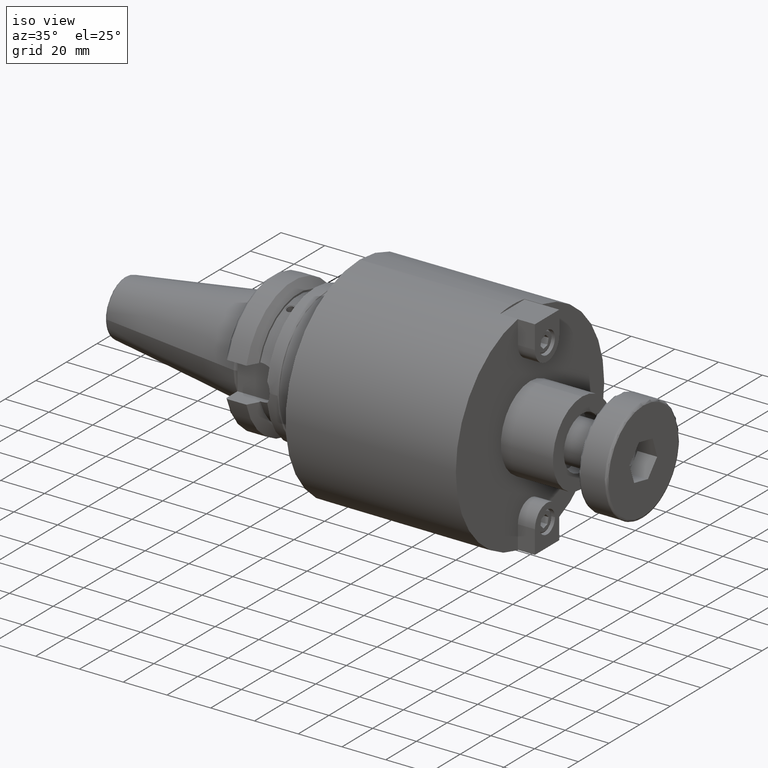
[diagram: clean part render]
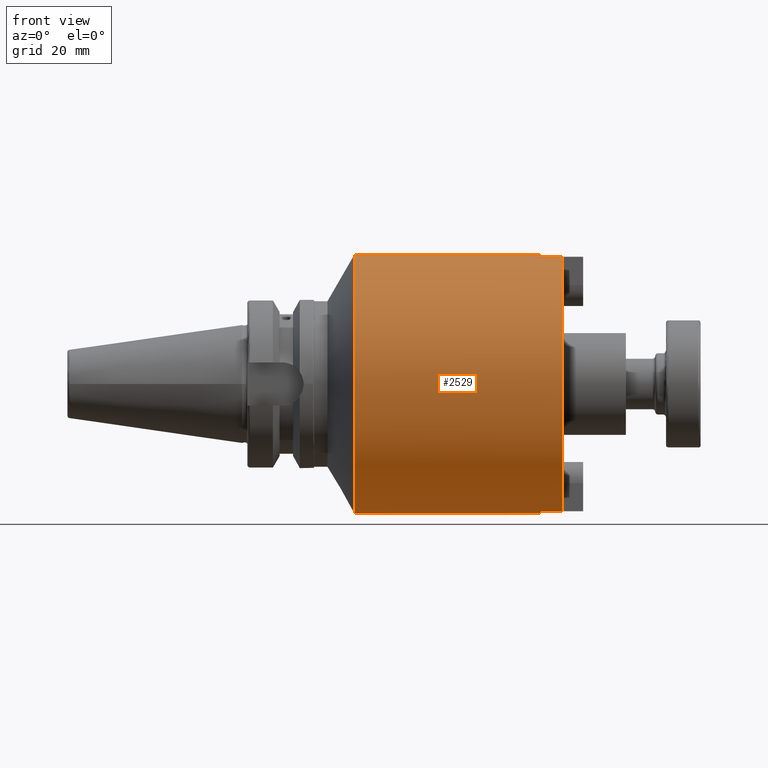
[diagram: tour spotlight — one face highlighted and labeled with its STEP entity id]
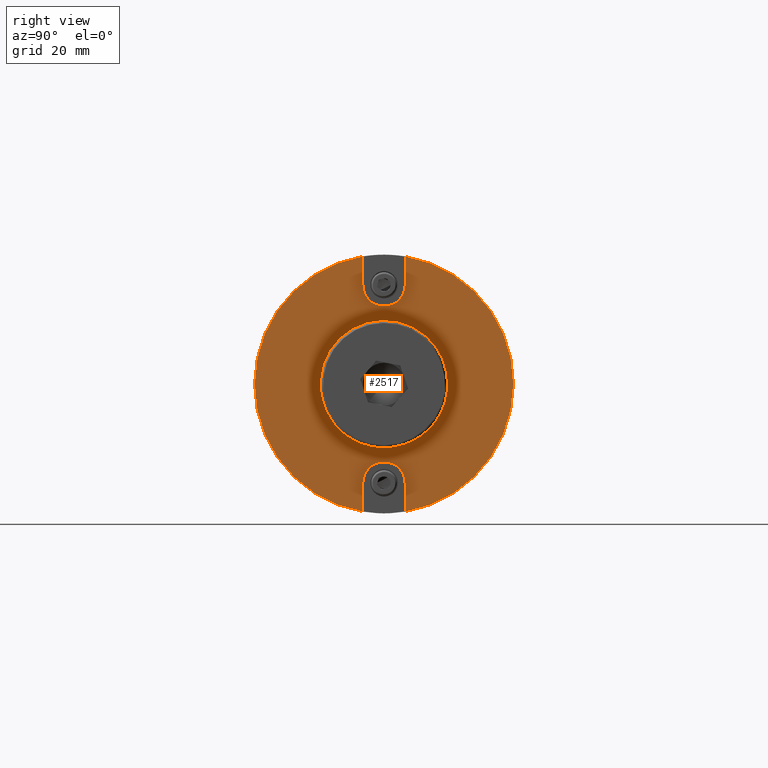
[diagram: tour spotlight — one face highlighted and labeled with its STEP entity id]
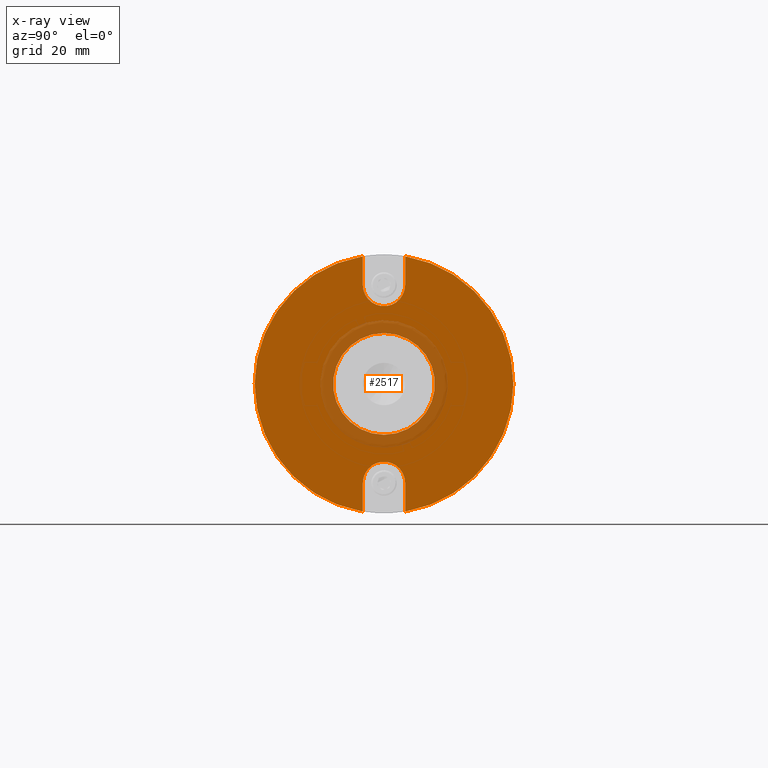
[diagram: x-ray of the same camera — body ghosted, this tour face saturated]
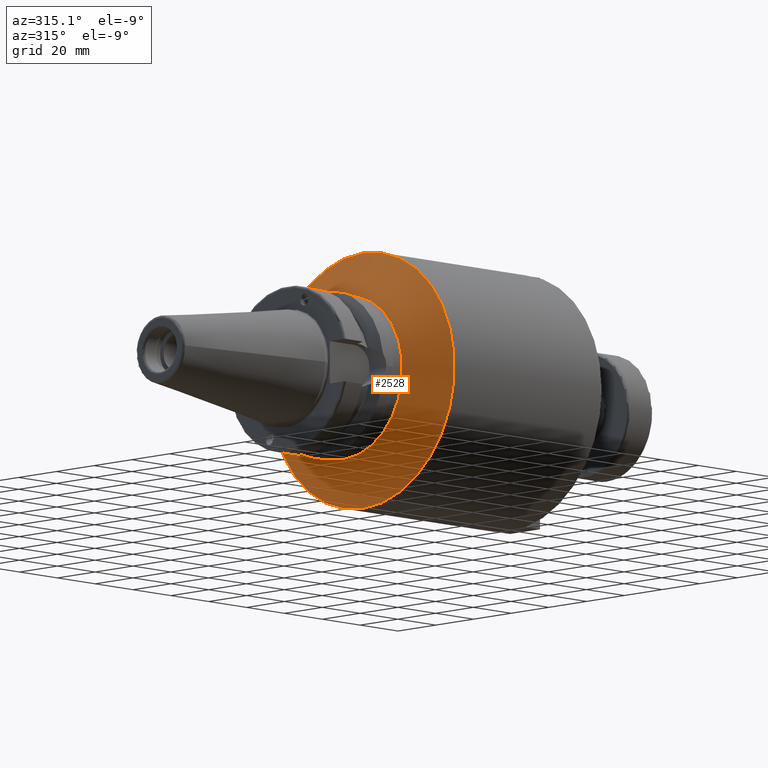
[diagram: tour spotlight — one face highlighted and labeled with its STEP entity id]
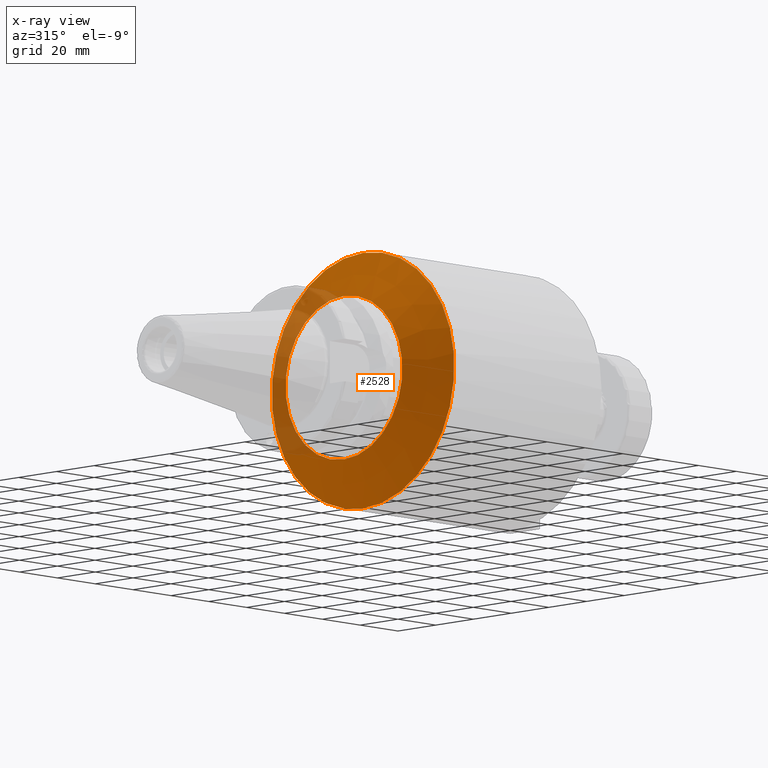
[diagram: x-ray of the same camera — body ghosted, this tour face saturated]
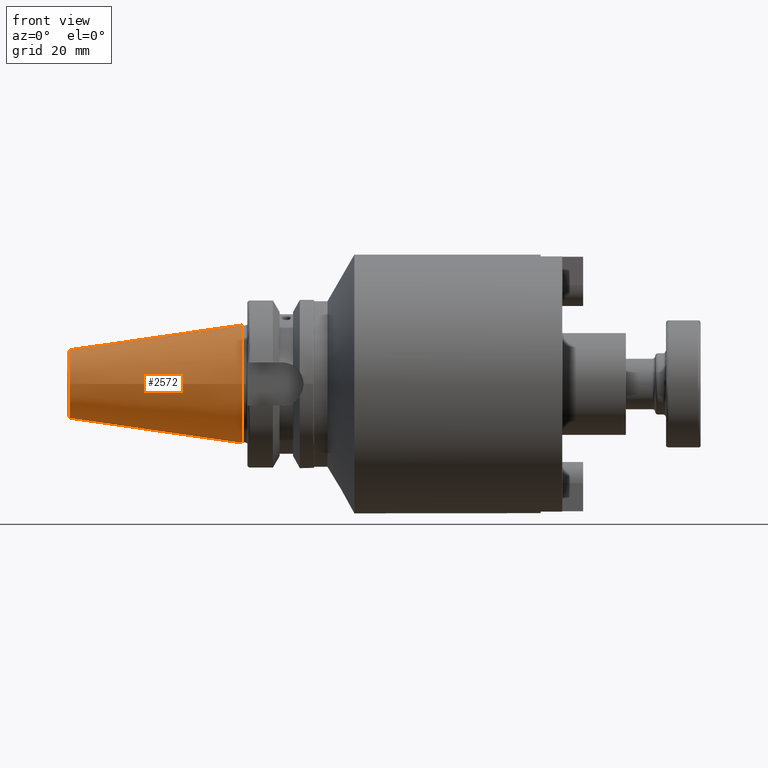
[diagram: tour spotlight — one face highlighted and labeled with its STEP entity id]
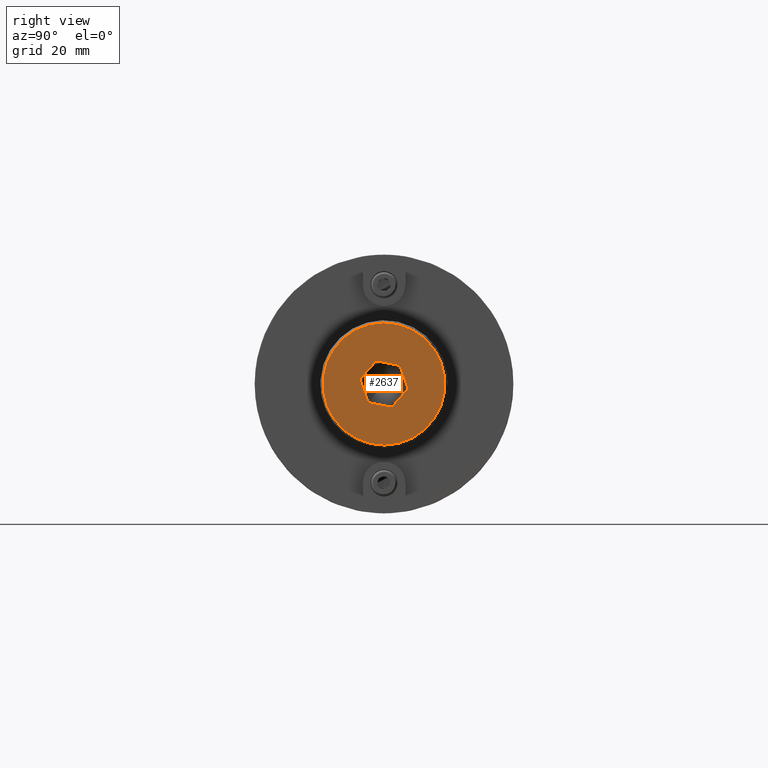
[diagram: tour spotlight — one face highlighted and labeled with its STEP entity id]
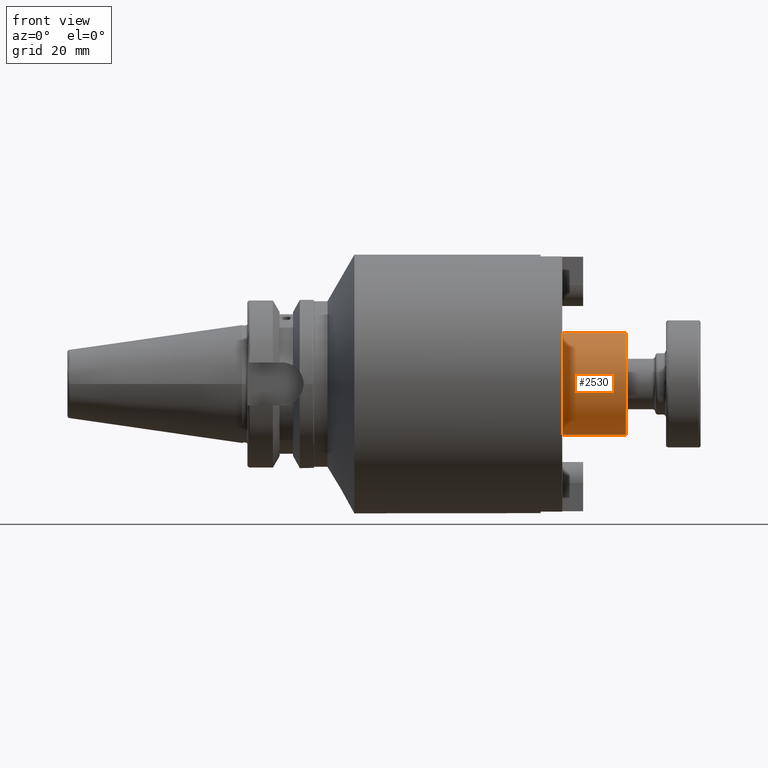
[diagram: tour spotlight — one face highlighted and labeled with its STEP entity id]
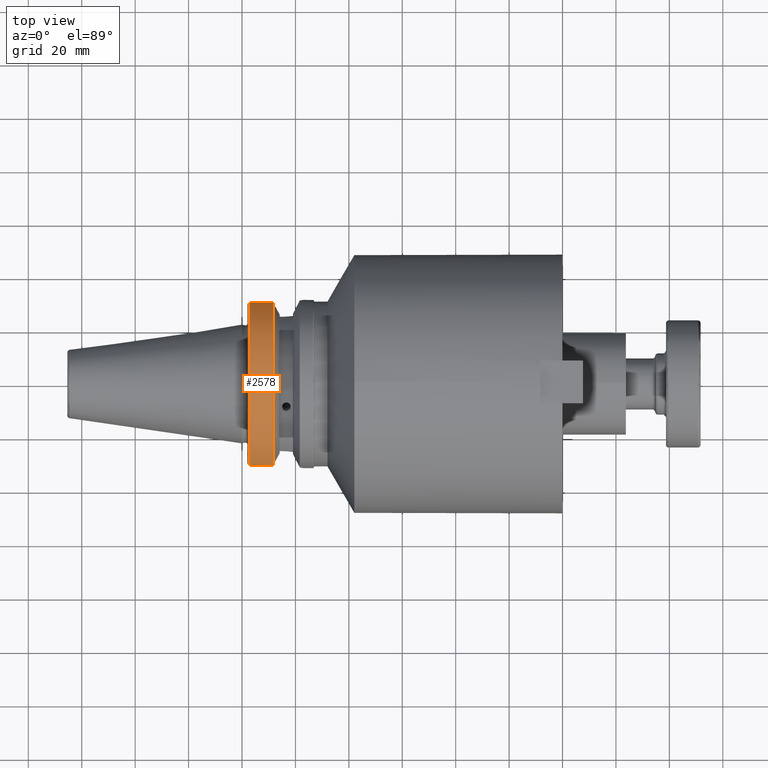
[diagram: tour spotlight — one face highlighted and labeled with its STEP entity id]
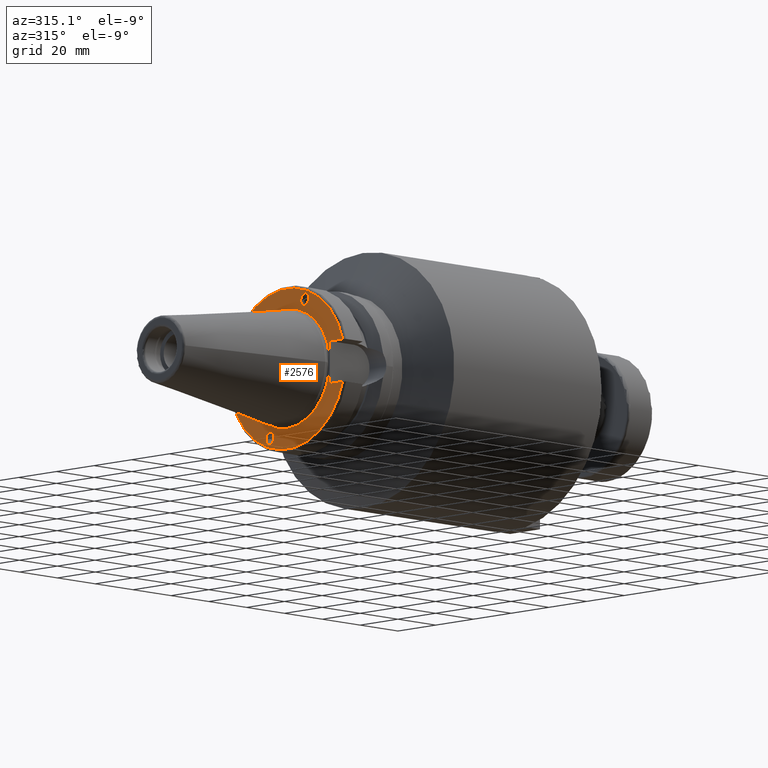
[diagram: tour spotlight — one face highlighted and labeled with its STEP entity id]
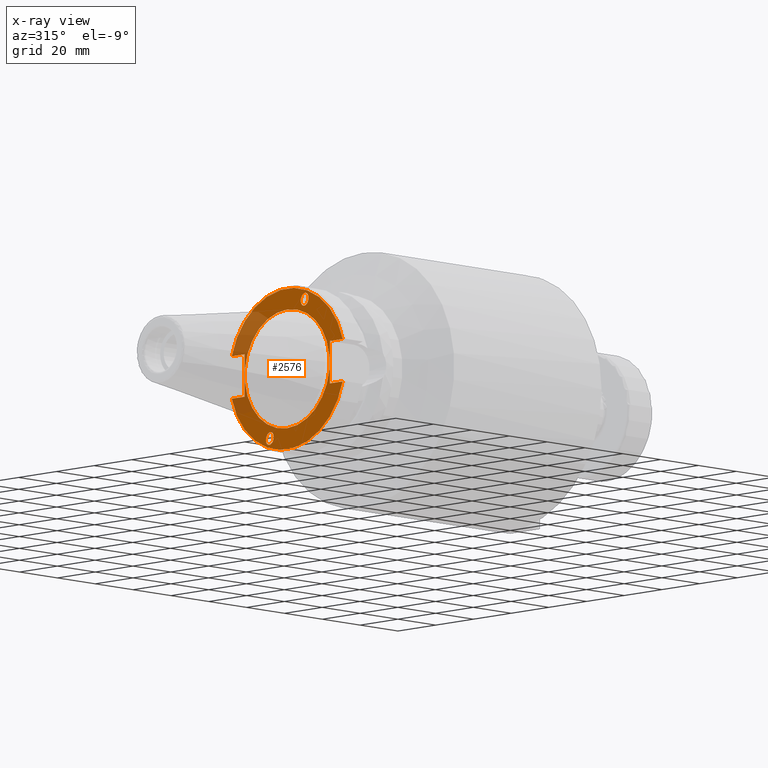
[diagram: x-ray of the same camera — body ghosted, this tour face saturated]
A machine part: a face-by-face anatomy tour. The part has 151 B-rep faces; the first image is the clean iso view, then the 8 largest visible faces are spotlighted one at a time (largest first), each with its STEP entity span.

Face 1 — front view, entity #2529. In plain terms, the highlighted cylindrical surface (bore or boss wall) has radius 48.425 mm, axis along (1, 0, 0).
Definition (entity closure, byte-faithful):
#578=CYLINDRICAL_SURFACE('',#2834,48.425);
#616=CIRCLE('',#2804,48.425);
#617=CIRCLE('',#2805,48.425);
#618=CIRCLE('',#2807,48.425);
#620=CIRCLE('',#2809,48.425);
#625=CIRCLE('',#2820,48.425);
#633=CIRCLE('',#2833,48.425);
#786=FACE_OUTER_BOUND('',#918,.T.);
#918=EDGE_LOOP('',(#1919,#1920,#1921,#1922,#1923,#1924,#1925,#1926,#1927,
#1928,#1929,#1930));
#1047=LINE('',#3948,#1184);
#1053=LINE('',#3966,#1190);
#1061=LINE('',#4002,#1198);
#1064=LINE('',#4008,#1201);
#1072=LINE('',#4119,#1209);
#1184=VECTOR('',#3136,10.);
#1190=VECTOR('',#3152,10.);
#1198=VECTOR('',#3192,10.);
#1201=VECTOR('',#3197,10.);
#1209=VECTOR('',#3241,48.425);
#1321=VERTEX_POINT('',#3946);
#1322=VERTEX_POINT('',#3947);
#1328=VERTEX_POINT('',#3964);
#1329=VERTEX_POINT('',#3965);
#1332=VERTEX_POINT('',#3976);
#1333=VERTEX_POINT('',#3980);
#1336=VERTEX_POINT('',#3986);
#1341=VERTEX_POINT('',#4001);
#1343=VERTEX_POINT('',#4007);
#1356=VERTEX_POINT('',#4115);
#1525=EDGE_CURVE('',#1321,#1322,#1047,.T.);
#1533=EDGE_CURVE('',#1328,#1329,#1053,.T.);
#1539=EDGE_CURVE('',#1329,#1332,#616,.T.);
#1540=EDGE_CURVE('',#1332,#1321,#617,.T.);
#1541=EDGE_CURVE('',#1328,#1333,#618,.T.);
#1545=EDGE_CURVE('',#1336,#1322,#620,.T.);
#1551=EDGE_CURVE('',#1341,#1333,#1061,.T.);
#1554=EDGE_CURVE('',#1336,#1343,#1064,.T.);
#1558=EDGE_CURVE('',#1343,#1341,#625,.T.);
#1574=EDGE_CURVE('',#1356,#1356,#633,.T.);
#1576=EDGE_CURVE('',#1332,#1356,#1072,.T.);
#1919=ORIENTED_EDGE('',*,*,#1525,.T.);
#1920=ORIENTED_EDGE('',*,*,#1545,.F.);
#1921=ORIENTED_EDGE('',*,*,#1554,.T.);
#1922=ORIENTED_EDGE('',*,*,#1558,.T.);
#1923=ORIENTED_EDGE('',*,*,#1551,.T.);
#1924=ORIENTED_EDGE('',*,*,#1541,.F.);
#1925=ORIENTED_EDGE('',*,*,#1533,.T.);
#1926=ORIENTED_EDGE('',*,*,#1539,.T.);
#1927=ORIENTED_EDGE('',*,*,#1576,.T.);
#1928=ORIENTED_EDGE('',*,*,#1574,.T.);
#1929=ORIENTED_EDGE('',*,*,#1576,.F.);
#1930=ORIENTED_EDGE('',*,*,#1540,.T.);
#2529=ADVANCED_FACE('',(#786),#578,.T.);
#2804=AXIS2_PLACEMENT_3D('',#3977,#3164,#3165);
#2805=AXIS2_PLACEMENT_3D('',#3978,#3166,#3167);
#2807=AXIS2_PLACEMENT_3D('',#3981,#3170,#3171);
#2809=AXIS2_PLACEMENT_3D('',#3988,#3176,#3177);
#2820=AXIS2_PLACEMENT_3D('',#4015,#3206,#3207);
#2833=AXIS2_PLACEMENT_3D('',#4116,#3236,#3237);
#2834=AXIS2_PLACEMENT_3D('',#4118,#3239,#3240);
#3136=DIRECTION('',(1.,0.,0.));
#3152=DIRECTION('',(-1.,0.,0.));
#3164=DIRECTION('center_axis',(-1.,0.,0.));
#3165=DIRECTION('ref_axis',(0.,0.,-1.));
#3166=DIRECTION('center_axis',(-1.,0.,0.));
#3167=DIRECTION('ref_axis',(0.,0.,-1.));
#3170=DIRECTION('center_axis',(1.,0.,0.));
#3171=DIRECTION('ref_axis',(0.,0.,-1.));
#3176=DIRECTION('center_axis',(1.,0.,0.));
#3177=DIRECTION('ref_axis',(0.,0.,-1.));
#3192=DIRECTION('',(1.,0.,0.));
#3197=DIRECTION('',(-1.,0.,0.));
#3206=DIRECTION('center_axis',(-1.,0.,0.));
#3207=DIRECTION('ref_axis',(0.,0.,-1.));
#3236=DIRECTION('center_axis',(1.,0.,0.));
#3237=DIRECTION('ref_axis',(0.,0.,-1.));
#3239=DIRECTION('center_axis',(1.,0.,0.));
#3240=DIRECTION('ref_axis',(0.,0.,-1.));
#3241=DIRECTION('',(-1.,0.,0.));
#3946=CARTESIAN_POINT('',(111.818,7.935,47.770455304508));
#3947=CARTESIAN_POINT('',(119.888,7.935,47.770455304508));
#3948=CARTESIAN_POINT('',(80.9741642203146,7.935,47.770455304508));
#3964=CARTESIAN_POINT('',(119.888,-7.93499999999999,47.770455304508));
#3965=CARTESIAN_POINT('',(111.818,-7.93499999999999,47.770455304508));
#3966=CARTESIAN_POINT('',(80.9741642203146,-7.93499999999999,47.770455304508));
#3976=CARTESIAN_POINT('',(111.818,-5.93035212487106E-15,48.425));
#3977=CARTESIAN_POINT('Origin',(111.818,0.,0.));
#3978=CARTESIAN_POINT('Origin',(111.818,0.,0.));
#3980=CARTESIAN_POINT('',(119.888,-7.935,-47.770455304508));
#3981=CARTESIAN_POINT('Origin',(119.888,0.,0.));
#3986=CARTESIAN_POINT('',(119.888,7.935,-47.770455304508));
#3988=CARTESIAN_POINT('Origin',(119.888,0.,0.));
#4001=CARTESIAN_POINT('',(111.818,-7.935,-47.770455304508));
#4002=CARTESIAN_POINT('',(80.9741642203146,-7.935,-47.770455304508));
#4007=CARTESIAN_POINT('',(111.818,7.935,-47.770455304508));
#4008=CARTESIAN_POINT('',(80.9741642203146,7.935,-47.770455304508));
#4015=CARTESIAN_POINT('Origin',(111.818,0.,0.));
#4115=CARTESIAN_POINT('',(42.0603284406292,-5.93035212487106E-15,48.425));
#4116=CARTESIAN_POINT('Origin',(42.0603284406292,0.,0.));
#4118=CARTESIAN_POINT('Origin',(80.9741642203146,0.,0.));
#4119=CARTESIAN_POINT('',(80.9741642203146,-5.93035212487106E-15,48.425));

Face 2 — right view, entity #2517. An x-ray twin of the same camera follows (body ghosted, this face saturated) — the face is partly hidden behind the body. In plain terms, the highlighted planar face has unit normal (1, 0, 0).
Definition (entity closure, byte-faithful):
#547=FACE_BOUND('',#903,.T.);
#614=CIRCLE('',#2801,7.935);
#618=CIRCLE('',#2807,48.425);
#619=CIRCLE('',#2808,7.935);
#620=CIRCLE('',#2809,48.425);
#621=CIRCLE('',#2810,19.05);
#774=FACE_OUTER_BOUND('',#902,.T.);
#902=EDGE_LOOP('',(#1860,#1861,#1862,#1863,#1864,#1865,#1866,#1867));
#903=EDGE_LOOP('',(#1868));
#1050=LINE('',#3953,#1187);
#1054=LINE('',#3968,#1191);
#1057=LINE('',#3983,#1194);
#1058=LINE('',#3987,#1195);
#1187=VECTOR('',#3139,10.);
#1191=VECTOR('',#3153,10.);
#1194=VECTOR('',#3172,10.);
#1195=VECTOR('',#3175,10.);
#1322=VERTEX_POINT('',#3947);
#1324=VERTEX_POINT('',#3951);
#1328=VERTEX_POINT('',#3964);
#1330=VERTEX_POINT('',#3967);
#1333=VERTEX_POINT('',#3980);
#1334=VERTEX_POINT('',#3982);
#1335=VERTEX_POINT('',#3984);
#1336=VERTEX_POINT('',#3986);
#1337=VERTEX_POINT('',#3989);
#1528=EDGE_CURVE('',#1322,#1324,#1050,.T.);
#1534=EDGE_CURVE('',#1330,#1328,#1054,.T.);
#1537=EDGE_CURVE('',#1324,#1330,#614,.T.);
#1541=EDGE_CURVE('',#1328,#1333,#618,.T.);
#1542=EDGE_CURVE('',#1333,#1334,#1057,.T.);
#1543=EDGE_CURVE('',#1334,#1335,#619,.T.);
#1544=EDGE_CURVE('',#1335,#1336,#1058,.T.);
#1545=EDGE_CURVE('',#1336,#1322,#620,.T.);
#1546=EDGE_CURVE('',#1337,#1337,#621,.T.);
#1860=ORIENTED_EDGE('',*,*,#1528,.T.);
#1861=ORIENTED_EDGE('',*,*,#1537,.T.);
#1862=ORIENTED_EDGE('',*,*,#1534,.T.);
#1863=ORIENTED_EDGE('',*,*,#1541,.T.);
#1864=ORIENTED_EDGE('',*,*,#1542,.T.);
#1865=ORIENTED_EDGE('',*,*,#1543,.T.);
#1866=ORIENTED_EDGE('',*,*,#1544,.T.);
#1867=ORIENTED_EDGE('',*,*,#1545,.T.);
#1868=ORIENTED_EDGE('',*,*,#1546,.F.);
#2458=PLANE('',#2806);
#2517=ADVANCED_FACE('',(#774,#547),#2458,.T.);
#2801=AXIS2_PLACEMENT_3D('',#3973,#3158,#3159);
#2806=AXIS2_PLACEMENT_3D('',#3979,#3168,#3169);
#2807=AXIS2_PLACEMENT_3D('',#3981,#3170,#3171);
#2808=AXIS2_PLACEMENT_3D('',#3985,#3173,#3174);
#2809=AXIS2_PLACEMENT_3D('',#3988,#3176,#3177);
#2810=AXIS2_PLACEMENT_3D('',#3990,#3178,#3179);
#3139=DIRECTION('',(0.,2.16741865953018E-16,-1.));
#3153=DIRECTION('',(0.,4.61671225782489E-16,1.));
#3158=DIRECTION('center_axis',(-1.,0.,0.));
#3159=DIRECTION('ref_axis',(0.,-1.,1.22464679914735E-16));
#3168=DIRECTION('center_axis',(1.,0.,0.));
#3169=DIRECTION('ref_axis',(0.,0.,-1.));
#3170=DIRECTION('center_axis',(1.,0.,0.));
#3171=DIRECTION('ref_axis',(0.,0.,-1.));
#3172=DIRECTION('',(0.,-3.39206545867753E-16,1.));
#3173=DIRECTION('center_axis',(-1.,0.,0.));
#3174=DIRECTION('ref_axis',(0.,1.,0.));
#3175=DIRECTION('',(0.,-3.39206545867753E-16,-1.));
#3176=DIRECTION('center_axis',(1.,0.,0.));
#3177=DIRECTION('ref_axis',(0.,0.,-1.));
#3178=DIRECTION('center_axis',(1.,0.,0.));
#3179=DIRECTION('ref_axis',(0.,0.,-1.));
#3947=CARTESIAN_POINT('',(119.888,7.935,47.770455304508));
#3951=CARTESIAN_POINT('',(119.888,7.93500000000001,37.06));
#3953=CARTESIAN_POINT('',(119.888,7.93500000000001,17.1875));
#3964=CARTESIAN_POINT('',(119.888,-7.93499999999999,47.770455304508));
#3967=CARTESIAN_POINT('',(119.888,-7.935,37.06));
#3968=CARTESIAN_POINT('',(119.888,-7.93500000000001,9.00499999999999));
#3973=CARTESIAN_POINT('Origin',(119.888,4.53854103764009E-15,37.06));
#3979=CARTESIAN_POINT('Origin',(119.888,0.,-19.05));
#3980=CARTESIAN_POINT('',(119.888,-7.935,-47.770455304508));
#3981=CARTESIAN_POINT('Origin',(119.888,0.,0.));
#3982=CARTESIAN_POINT('',(119.888,-7.935,-37.06));
#3983=CARTESIAN_POINT('',(119.888,-7.935,-36.2375));
#3984=CARTESIAN_POINT('',(119.888,7.935,-37.06));
#3985=CARTESIAN_POINT('Origin',(119.888,0.,-37.06));
#3986=CARTESIAN_POINT('',(119.888,7.935,-47.770455304508));
#3987=CARTESIAN_POINT('',(119.888,7.935,-28.055));
#3988=CARTESIAN_POINT('Origin',(119.888,0.,0.));
#3989=CARTESIAN_POINT('',(119.888,-2.33295215237571E-15,19.05));
#3990=CARTESIAN_POINT('Origin',(119.888,0.,0.));

Face 3 — auxiliary view, entity #2528. An x-ray twin of the same camera follows (body ghosted, this face saturated) — the face is partly hidden behind the body. In plain terms, the highlighted conical surface has half-angle 60 deg.
Definition (entity closure, byte-faithful):
#631=CIRCLE('',#2830,31.);
#633=CIRCLE('',#2833,48.425);
#754=CONICAL_SURFACE('',#2832,39.7125,1.0471975511966);
#785=FACE_OUTER_BOUND('',#917,.T.);
#917=EDGE_LOOP('',(#1915,#1916,#1917,#1918));
#1071=LINE('',#4117,#1208);
#1208=VECTOR('',#3238,39.7125);
#1354=VERTEX_POINT('',#4109);
#1356=VERTEX_POINT('',#4115);
#1571=EDGE_CURVE('',#1354,#1354,#631,.T.);
#1574=EDGE_CURVE('',#1356,#1356,#633,.T.);
#1575=EDGE_CURVE('',#1356,#1354,#1071,.T.);
#1915=ORIENTED_EDGE('',*,*,#1574,.F.);
#1916=ORIENTED_EDGE('',*,*,#1575,.T.);
#1917=ORIENTED_EDGE('',*,*,#1571,.T.);
#1918=ORIENTED_EDGE('',*,*,#1575,.F.);
#2528=ADVANCED_FACE('',(#785),#754,.T.);
#2830=AXIS2_PLACEMENT_3D('',#4110,#3229,#3230);
#2832=AXIS2_PLACEMENT_3D('',#4114,#3234,#3235);
#2833=AXIS2_PLACEMENT_3D('',#4116,#3236,#3237);
#3229=DIRECTION('center_axis',(1.,0.,0.));
#3230=DIRECTION('ref_axis',(0.,0.,-1.));
#3234=DIRECTION('center_axis',(1.,0.,0.));
#3235=DIRECTION('ref_axis',(0.,0.,-1.));
#3236=DIRECTION('center_axis',(1.,0.,0.));
#3237=DIRECTION('ref_axis',(0.,0.,-1.));
#3238=DIRECTION('',(-0.5,1.06057523872491E-16,-0.866025403784439));
#4109=CARTESIAN_POINT('',(32.,-3.7964050773568E-15,31.));
#4110=CARTESIAN_POINT('Origin',(32.,0.,0.));
#4114=CARTESIAN_POINT('Origin',(37.0301642203146,0.,0.));
#4115=CARTESIAN_POINT('',(42.0603284406292,-5.93035212487106E-15,48.425));
#4116=CARTESIAN_POINT('Origin',(42.0603284406292,0.,0.));
#4117=CARTESIAN_POINT('',(37.0301642203146,-4.86337860111393E-15,39.7125));

Face 4 — front view, entity #2572. In plain terms, the highlighted conical surface has half-angle 8.297 deg.
Definition (entity closure, byte-faithful):
#666=CIRCLE('',#2927,12.8122885780937);
#667=CIRCLE('',#2928,12.8122885780937);
#669=CIRCLE('',#2931,22.225);
#760=CONICAL_SURFACE('',#2930,17.5186442890469,0.144812498238939);
#829=FACE_OUTER_BOUND('',#969,.T.);
#969=EDGE_LOOP('',(#2151,#2152,#2153,#2154,#2155));
#1120=LINE('',#4545,#1257);
#1257=VECTOR('',#3483,17.5186442890469);
#1441=VERTEX_POINT('',#4537);
#1442=VERTEX_POINT('',#4538);
#1443=VERTEX_POINT('',#4543);
#1697=EDGE_CURVE('',#1441,#1442,#666,.T.);
#1698=EDGE_CURVE('',#1442,#1441,#667,.T.);
#1700=EDGE_CURVE('',#1443,#1443,#669,.T.);
#1701=EDGE_CURVE('',#1443,#1441,#1120,.T.);
#2151=ORIENTED_EDGE('',*,*,#1700,.F.);
#2152=ORIENTED_EDGE('',*,*,#1701,.T.);
#2153=ORIENTED_EDGE('',*,*,#1697,.T.);
#2154=ORIENTED_EDGE('',*,*,#1698,.T.);
#2155=ORIENTED_EDGE('',*,*,#1701,.F.);
#2572=ADVANCED_FACE('',(#829),#760,.T.);
#2927=AXIS2_PLACEMENT_3D('',#4539,#3473,#3474);
#2928=AXIS2_PLACEMENT_3D('',#4540,#3475,#3476);
#2930=AXIS2_PLACEMENT_3D('',#4542,#3479,#3480);
#2931=AXIS2_PLACEMENT_3D('',#4544,#3481,#3482);
#3473=DIRECTION('center_axis',(1.,0.,0.));
#3474=DIRECTION('ref_axis',(0.,0.,-1.));
#3475=DIRECTION('center_axis',(1.,0.,0.));
#3476=DIRECTION('ref_axis',(0.,0.,-1.));
#3479=DIRECTION('center_axis',(1.,0.,0.));
#3480=DIRECTION('ref_axis',(0.,1.,0.));
#3481=DIRECTION('center_axis',(1.,0.,0.));
#3482=DIRECTION('ref_axis',(0.,0.,-1.));
#3483=DIRECTION('',(-0.989532981063282,0.144306893071729,1.76724974695192E-17));
#4537=CARTESIAN_POINT('',(-64.5443068930717,-12.8122885780937,-1.56905281969147E-15));
#4538=CARTESIAN_POINT('',(-64.5443068930717,-1.56905281969147E-15,12.8122885780937));
#4539=CARTESIAN_POINT('Origin',(-64.5443068930717,0.,0.));
#4540=CARTESIAN_POINT('Origin',(-64.5443068930717,0.,0.));
#4542=CARTESIAN_POINT('Origin',(-32.2721534465359,0.,0.));
#4543=CARTESIAN_POINT('',(4.44089209850063E-15,-22.225,-2.72177751110499E-15));
#4544=CARTESIAN_POINT('Origin',(0.,0.,0.));
#4545=CARTESIAN_POINT('',(-32.2721534465359,-17.5186442890469,-2.14541516539823E-15));

Face 5 — right view, entity #2637. In plain terms, the highlighted planar face has unit normal (1, -0, -0).
Definition (entity closure, byte-faithful):
#570=FACE_BOUND('',#1046,.T.);
#748=CIRCLE('',#3095,22.85);
#894=FACE_OUTER_BOUND('',#1045,.T.);
#1045=EDGE_LOOP('',(#2448));
#1046=EDGE_LOOP('',(#2449,#2450,#2451,#2452,#2453,#2454));
#1168=LINE('',#5090,#1305);
#1171=LINE('',#5095,#1308);
#1173=LINE('',#5099,#1310);
#1175=LINE('',#5103,#1312);
#1177=LINE('',#5107,#1314);
#1179=LINE('',#5110,#1316);
#1305=VECTOR('',#3783,10.);
#1308=VECTOR('',#3788,10.);
#1310=VECTOR('',#3792,10.);
#1312=VECTOR('',#3796,10.);
#1314=VECTOR('',#3800,10.);
#1316=VECTOR('',#3804,10.);
#1502=VERTEX_POINT('',#5088);
#1503=VERTEX_POINT('',#5089);
#1504=VERTEX_POINT('',#5094);
#1505=VERTEX_POINT('',#5098);
#1506=VERTEX_POINT('',#5102);
#1507=VERTEX_POINT('',#5106);
#1524=VERTEX_POINT('',#5162);
#1797=EDGE_CURVE('',#1502,#1503,#1168,.T.);
#1800=EDGE_CURVE('',#1504,#1502,#1171,.T.);
#1802=EDGE_CURVE('',#1505,#1504,#1173,.T.);
#1804=EDGE_CURVE('',#1506,#1505,#1175,.T.);
#1806=EDGE_CURVE('',#1507,#1506,#1177,.T.);
#1808=EDGE_CURVE('',#1503,#1507,#1179,.T.);
#1834=EDGE_CURVE('',#1524,#1524,#748,.T.);
#2448=ORIENTED_EDGE('',*,*,#1834,.F.);
#2449=ORIENTED_EDGE('',*,*,#1797,.T.);
#2450=ORIENTED_EDGE('',*,*,#1808,.T.);
#2451=ORIENTED_EDGE('',*,*,#1806,.T.);
#2452=ORIENTED_EDGE('',*,*,#1804,.T.);
#2453=ORIENTED_EDGE('',*,*,#1802,.T.);
#2454=ORIENTED_EDGE('',*,*,#1800,.T.);
#2510=PLANE('',#3096);
#2637=ADVANCED_FACE('',(#894,#570),#2510,.T.);
#3095=AXIS2_PLACEMENT_3D('',#5164,#3873,#3874);
#3096=AXIS2_PLACEMENT_3D('',#5165,#3875,#3876);
#3783=DIRECTION('',(0.,-6.05657539018445E-16,-1.));
#3788=DIRECTION('',(0.,-0.866025403784439,-0.5));
#3792=DIRECTION('',(0.,-0.866025403784438,0.500000000000001));
#3796=DIRECTION('',(0.,7.26789046822135E-16,1.));
#3800=DIRECTION('',(0.,0.866025403784439,0.499999999999999));
#3804=DIRECTION('',(0.,0.866025403784438,-0.500000000000001));
#3873=DIRECTION('center_axis',(1.,0.,0.));
#3874=DIRECTION('ref_axis',(0.,-1.,1.83697019872103E-16));
#3875=DIRECTION('center_axis',(-1.,0.,0.));
#3876=DIRECTION('ref_axis',(0.,0.,1.));
#5088=CARTESIAN_POINT('',(0.,-7.9375,4.58271776169266));
#5089=CARTESIAN_POINT('',(0.,-7.93750000000001,-4.58271776169265));
#5090=CARTESIAN_POINT('',(0.,-7.9375,2.29135888084634));
#5094=CARTESIAN_POINT('',(0.,1.29571695644452E-15,9.16543552338531));
#5095=CARTESIAN_POINT('',(0.,6.95937500000001,13.1834325530269));
#5098=CARTESIAN_POINT('',(0.,7.9375,4.58271776169265));
#5099=CARTESIAN_POINT('',(0.,14.896875,0.564720732051088));
#5102=CARTESIAN_POINT('',(0.,7.93749999999999,-4.58271776169266));
#5103=CARTESIAN_POINT('',(0.,7.93749999999999,-2.29135888084632));
#5106=CARTESIAN_POINT('',(0.,-9.62238964113319E-15,-9.16543552338531));
#5107=CARTESIAN_POINT('',(0.,10.928125,-2.85607961289743));
#5110=CARTESIAN_POINT('',(0.,2.99062499999999,-10.8920736721805));
#5162=CARTESIAN_POINT('',(0.,-2.7983179360517E-15,22.85));
#5164=CARTESIAN_POINT('Origin',(0.,0.,0.));
#5165=CARTESIAN_POINT('Origin',(0.,23.85,0.));

Face 6 — front view, entity #2530. In plain terms, the highlighted cylindrical surface (bore or boss wall) has radius 19.05 mm, axis along (1, 0, 0).
Definition (entity closure, byte-faithful):
#579=CYLINDRICAL_SURFACE('',#2835,19.05);
#621=CIRCLE('',#2810,19.05);
#634=CIRCLE('',#2836,19.05);
#787=FACE_OUTER_BOUND('',#919,.T.);
#919=EDGE_LOOP('',(#1931,#1932,#1933,#1934));
#1073=LINE('',#4123,#1210);
#1210=VECTOR('',#3246,19.05);
#1337=VERTEX_POINT('',#3989);
#1357=VERTEX_POINT('',#4121);
#1546=EDGE_CURVE('',#1337,#1337,#621,.T.);
#1577=EDGE_CURVE('',#1357,#1357,#634,.T.);
#1578=EDGE_CURVE('',#1357,#1337,#1073,.T.);
#1931=ORIENTED_EDGE('',*,*,#1577,.F.);
#1932=ORIENTED_EDGE('',*,*,#1578,.T.);
#1933=ORIENTED_EDGE('',*,*,#1546,.T.);
#1934=ORIENTED_EDGE('',*,*,#1578,.F.);
#2530=ADVANCED_FACE('',(#787),#579,.T.);
#2810=AXIS2_PLACEMENT_3D('',#3990,#3178,#3179);
#2835=AXIS2_PLACEMENT_3D('',#4120,#3242,#3243);
#2836=AXIS2_PLACEMENT_3D('',#4122,#3244,#3245);
#3178=DIRECTION('center_axis',(1.,0.,0.));
#3179=DIRECTION('ref_axis',(0.,0.,-1.));
#3242=DIRECTION('center_axis',(1.,0.,0.));
#3243=DIRECTION('ref_axis',(0.,0.,-1.));
#3244=DIRECTION('center_axis',(1.,0.,0.));
#3245=DIRECTION('ref_axis',(0.,0.,-1.));
#3246=DIRECTION('',(-1.,0.,0.));
#3989=CARTESIAN_POINT('',(119.888,-2.33295215237571E-15,19.05));
#3990=CARTESIAN_POINT('Origin',(119.888,0.,0.));
#4120=CARTESIAN_POINT('Origin',(131.803,0.,0.));
#4121=CARTESIAN_POINT('',(143.718,-2.33295215237571E-15,19.05));
#4122=CARTESIAN_POINT('Origin',(143.718,0.,0.));
#4123=CARTESIAN_POINT('',(131.803,-2.33295215237571E-15,19.05));

Face 7 — top view, entity #2578. In plain terms, the highlighted cylindrical surface (partial cylindrical patch) has radius 31.5 mm, axis along (1, 0, 0).
Definition (entity closure, byte-faithful):
#599=CYLINDRICAL_SURFACE('',#2944,31.5);
#676=CIRCLE('',#2943,31.5);
#677=CIRCLE('',#2945,31.5000000000001);
#835=FACE_OUTER_BOUND('',#978,.T.);
#978=EDGE_LOOP('',(#2185,#2186,#2187,#2188));
#1095=LINE('',#4357,#1232);
#1115=LINE('',#4511,#1252);
#1232=VECTOR('',#3376,10.);
#1252=VECTOR('',#3444,10.);
#1403=VERTEX_POINT('',#4352);
#1404=VERTEX_POINT('',#4356);
#1433=VERTEX_POINT('',#4499);
#1434=VERTEX_POINT('',#4510);
#1642=EDGE_CURVE('',#1404,#1403,#1095,.T.);
#1685=EDGE_CURVE('',#1434,#1433,#1115,.T.);
#1710=EDGE_CURVE('',#1433,#1404,#676,.T.);
#1711=EDGE_CURVE('',#1434,#1403,#677,.T.);
#2185=ORIENTED_EDGE('',*,*,#1642,.T.);
#2186=ORIENTED_EDGE('',*,*,#1711,.F.);
#2187=ORIENTED_EDGE('',*,*,#1685,.T.);
#2188=ORIENTED_EDGE('',*,*,#1710,.T.);
#2578=ADVANCED_FACE('',(#835),#599,.T.);
#2943=AXIS2_PLACEMENT_3D('',#4563,#3508,#3509);
#2944=AXIS2_PLACEMENT_3D('',#4564,#3510,#3511);
#2945=AXIS2_PLACEMENT_3D('',#4565,#3512,#3513);
#3376=DIRECTION('',(1.,0.,0.));
#3444=DIRECTION('',(-1.,0.,0.));
#3508=DIRECTION('center_axis',(1.,0.,0.));
#3509=DIRECTION('ref_axis',(0.,0.,-1.));
#3510=DIRECTION('center_axis',(1.,0.,0.));
#3511=DIRECTION('ref_axis',(0.,1.,0.));
#3512=DIRECTION('center_axis',(1.,0.,0.));
#3513=DIRECTION('ref_axis',(0.,0.,-1.));
#4352=CARTESIAN_POINT('',(11.5690363073382,-30.4540227227866,8.05));
#4356=CARTESIAN_POINT('',(3.,-30.4540227227866,8.05));
#4357=CARTESIAN_POINT('',(7.28451815366907,-30.4540227227866,8.05));
#4499=CARTESIAN_POINT('',(3.,30.4540227227866,8.05));
#4510=CARTESIAN_POINT('',(11.5690363073382,30.4540227227866,8.05));
#4511=CARTESIAN_POINT('',(7.28451815366907,30.4540227227866,8.05));
#4563=CARTESIAN_POINT('Origin',(3.,0.,0.));
#4564=CARTESIAN_POINT('Origin',(7.28451815366907,0.,0.));
#4565=CARTESIAN_POINT('Origin',(11.5690363073382,0.,0.));

Face 8 — auxiliary view, entity #2576. An x-ray twin of the same camera follows (body ghosted, this face saturated) — the face is partly hidden behind the body. In plain terms, the highlighted planar face has unit normal (-1, 0, 0).
Definition (entity closure, byte-faithful):
#509=ELLIPSE('',#2864,2.44154917752291,2.);
#518=ELLIPSE('',#2887,2.44154917752291,2.);
#559=FACE_BOUND('',#974,.T.);
#560=FACE_BOUND('',#975,.T.);
#561=FACE_BOUND('',#976,.T.);
#658=CIRCLE('',#2911,30.5);
#674=CIRCLE('',#2939,22.5);
#675=CIRCLE('',#2941,30.5);
#833=FACE_OUTER_BOUND('',#973,.T.);
#973=EDGE_LOOP('',(#2170,#2171,#2172,#2173,#2174,#2175,#2176,#2177));
#974=EDGE_LOOP('',(#2178));
#975=EDGE_LOOP('',(#2179));
#976=EDGE_LOOP('',(#2180));
#1096=LINE('',#4370,#1233);
#1100=LINE('',#4378,#1237);
#1103=LINE('',#4398,#1240);
#1114=LINE('',#4498,#1251);
#1117=LINE('',#4519,#1254);
#1119=LINE('',#4522,#1256);
#1233=VECTOR('',#3377,10.);
#1237=VECTOR('',#3383,10.);
#1240=VECTOR('',#3388,10.);
#1251=VECTOR('',#3443,10.);
#1254=VECTOR('',#3448,10.);
#1256=VECTOR('',#3452,10.);
#1374=VERTEX_POINT('',#4210);
#1389=VERTEX_POINT('',#4291);
#1405=VERTEX_POINT('',#4358);
#1406=VERTEX_POINT('',#4369);
#1408=VERTEX_POINT('',#4375);
#1409=VERTEX_POINT('',#4377);
#1424=VERTEX_POINT('',#4458);
#1431=VERTEX_POINT('',#4495);
#1432=VERTEX_POINT('',#4497);
#1436=VERTEX_POINT('',#4518);
#1447=VERTEX_POINT('',#4557);
#1604=EDGE_CURVE('',#1374,#1374,#509,.T.);
#1627=EDGE_CURVE('',#1389,#1389,#518,.T.);
#1644=EDGE_CURVE('',#1406,#1405,#1096,.T.);
#1648=EDGE_CURVE('',#1409,#1408,#1100,.T.);
#1653=EDGE_CURVE('',#1408,#1406,#1103,.T.);
#1673=EDGE_CURVE('',#1409,#1424,#658,.T.);
#1683=EDGE_CURVE('',#1432,#1431,#1114,.T.);
#1688=EDGE_CURVE('',#1436,#1424,#1117,.T.);
#1690=EDGE_CURVE('',#1431,#1436,#1119,.T.);
#1708=EDGE_CURVE('',#1447,#1447,#674,.T.);
#1709=EDGE_CURVE('',#1432,#1405,#675,.T.);
#2170=ORIENTED_EDGE('',*,*,#1644,.T.);
#2171=ORIENTED_EDGE('',*,*,#1709,.F.);
#2172=ORIENTED_EDGE('',*,*,#1683,.T.);
#2173=ORIENTED_EDGE('',*,*,#1690,.T.);
#2174=ORIENTED_EDGE('',*,*,#1688,.T.);
#2175=ORIENTED_EDGE('',*,*,#1673,.F.);
#2176=ORIENTED_EDGE('',*,*,#1648,.T.);
#2177=ORIENTED_EDGE('',*,*,#1653,.T.);
#2178=ORIENTED_EDGE('',*,*,#1604,.T.);
#2179=ORIENTED_EDGE('',*,*,#1627,.T.);
#2180=ORIENTED_EDGE('',*,*,#1708,.T.);
#2477=PLANE('',#2940);
#2576=ADVANCED_FACE('',(#833,#559,#560,#561),#2477,.T.);
#2864=AXIS2_PLACEMENT_3D('',#4212,#3309,#3310);
#2887=AXIS2_PLACEMENT_3D('',#4293,#3362,#3363);
#2911=AXIS2_PLACEMENT_3D('',#4459,#3430,#3431);
#2939=AXIS2_PLACEMENT_3D('',#4559,#3500,#3501);
#2940=AXIS2_PLACEMENT_3D('',#4560,#3502,#3503);
#2941=AXIS2_PLACEMENT_3D('',#4561,#3504,#3505);
#3309=DIRECTION('center_axis',(1.,0.,0.));
#3310=DIRECTION('ref_axis',(5.68400912649004E-17,-0.342020143325671,0.939692620785908));
#3362=DIRECTION('center_axis',(1.,0.,0.));
#3363=DIRECTION('ref_axis',(5.68400912649004E-17,0.342020143325671,-0.939692620785908));
#3377=DIRECTION('',(0.,-1.,0.));
#3383=DIRECTION('',(0.,1.,0.));
#3388=DIRECTION('',(0.,0.,1.));
#3430=DIRECTION('center_axis',(1.,0.,0.));
#3431=DIRECTION('ref_axis',(0.,0.,-1.));
#3443=DIRECTION('',(0.,-1.,0.));
#3448=DIRECTION('',(0.,1.,0.));
#3452=DIRECTION('',(0.,0.,-1.));
#3500=DIRECTION('center_axis',(1.,0.,0.));
#3501=DIRECTION('ref_axis',(0.,0.,-1.));
#3502=DIRECTION('center_axis',(-1.,0.,0.));
#3503=DIRECTION('ref_axis',(0.,0.,1.));
#3504=DIRECTION('center_axis',(1.,0.,0.));
#3505=DIRECTION('ref_axis',(0.,0.,-1.));
#4210=CARTESIAN_POINT('',(1.99999999999999,-8.39948487015999,23.0773950158154));
#4212=CARTESIAN_POINT('Origin',(1.99999999999999,-9.23454386979305,25.3717007612195));
#4291=CARTESIAN_POINT('',(1.99999999999999,8.39948487015999,-23.0773950158154));
#4293=CARTESIAN_POINT('Origin',(1.99999999999999,9.23454386979305,-25.3717007612195));
#4358=CARTESIAN_POINT('',(1.99999999999999,-29.4184890842477,8.05));
#4369=CARTESIAN_POINT('',(1.99999999999999,-22.6,8.05));
#4370=CARTESIAN_POINT('',(1.99999999999999,3.95,8.05));
#4375=CARTESIAN_POINT('',(1.99999999999999,-22.6,-8.05));
#4377=CARTESIAN_POINT('',(1.99999999999999,-29.4184890842477,-8.05));
#4378=CARTESIAN_POINT('',(1.99999999999999,3.95,-8.05));
#4398=CARTESIAN_POINT('',(1.99999999999999,-22.6,0.));
#4458=CARTESIAN_POINT('',(1.99999999999999,29.4184890842477,-8.05));
#4459=CARTESIAN_POINT('Origin',(1.99999999999999,0.,0.));
#4495=CARTESIAN_POINT('',(1.99999999999999,22.6,8.05));
#4497=CARTESIAN_POINT('',(1.99999999999999,29.4184890842477,8.05));
#4498=CARTESIAN_POINT('',(1.99999999999999,26.55,8.05));
#4518=CARTESIAN_POINT('',(1.99999999999999,22.6,-8.05));
#4519=CARTESIAN_POINT('',(1.99999999999999,26.55,-8.05));
#4522=CARTESIAN_POINT('',(1.99999999999999,22.6,0.));
#4557=CARTESIAN_POINT('',(2.,-2.75545529808154E-15,22.5));
#4559=CARTESIAN_POINT('Origin',(2.,0.,0.));
#4560=CARTESIAN_POINT('Origin',(1.99999999999999,30.5,0.));
#4561=CARTESIAN_POINT('Origin',(1.99999999999999,0.,0.));